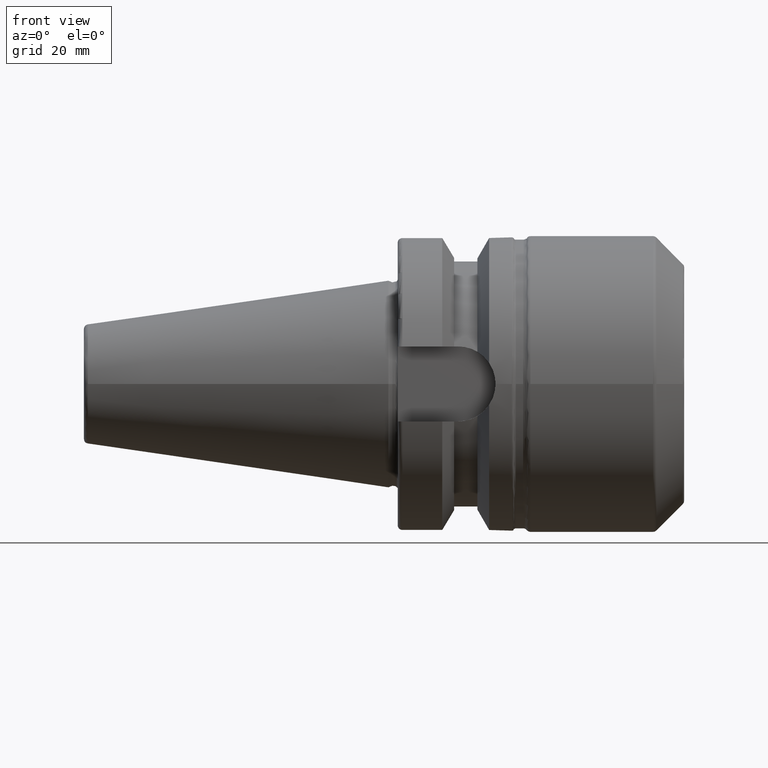
[diagram: clean part render]
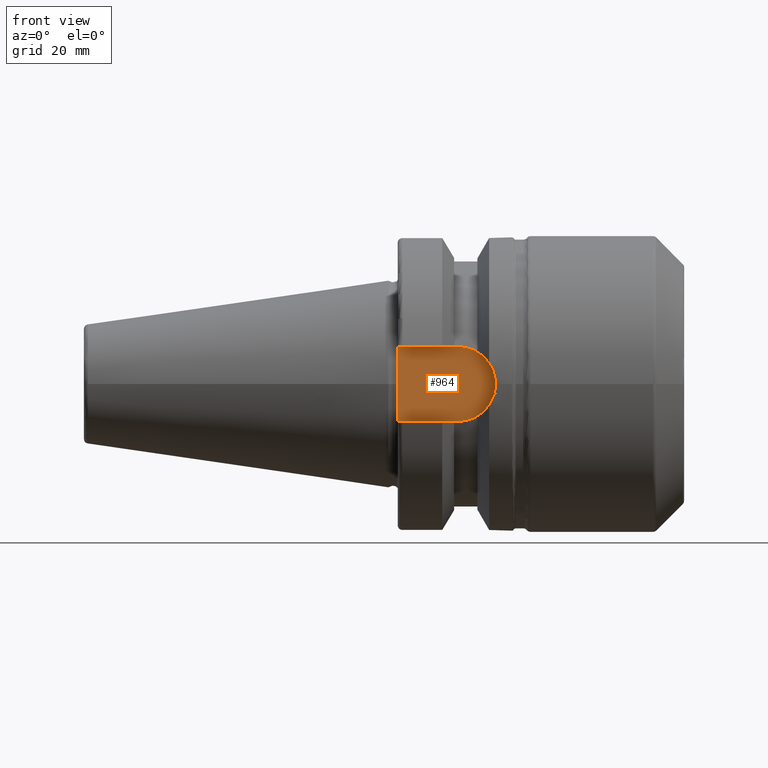
[diagram: same view with one face highlighted and labeled with its STEP entity id]
A machine part, front view. The second image highlights one B-rep face of the part: STEP entity #964.
In plain terms, the highlighted planar face has unit normal (0, 1, 0).
Its self-contained STEP definition (entity closure, byte-faithful):
#45=PLANE('',#1084);
#94=CIRCLE('',#1081,8.05);
#170=FACE_OUTER_BOUND('',#234,.T.);
#234=EDGE_LOOP('',(#759,#760,#761,#762));
#289=LINE('',#1729,#337);
#291=LINE('',#1734,#339);
#295=LINE('',#1756,#343);
#337=VECTOR('',#1301,10.);
#339=VECTOR('',#1305,10.);
#343=VECTOR('',#1311,10.);
#429=VERTEX_POINT('',#1700);
#430=VERTEX_POINT('',#1702);
#436=VERTEX_POINT('',#1727);
#438=VERTEX_POINT('',#1733);
#543=EDGE_CURVE('',#429,#430,#94,.T.);
#551=EDGE_CURVE('',#436,#429,#289,.T.);
#553=EDGE_CURVE('',#430,#438,#291,.T.);
#559=EDGE_CURVE('',#438,#436,#295,.T.);
#759=ORIENTED_EDGE('',*,*,#553,.F.);
#760=ORIENTED_EDGE('',*,*,#543,.F.);
#761=ORIENTED_EDGE('',*,*,#551,.F.);
#762=ORIENTED_EDGE('',*,*,#559,.F.);
#964=ADVANCED_FACE('',(#170),#45,.F.);
#1081=AXIS2_PLACEMENT_3D('',#1703,#1292,#1293);
#1084=AXIS2_PLACEMENT_3D('',#1755,#1309,#1310);
#1292=DIRECTION('center_axis',(0.,1.,0.));
#1293=DIRECTION('ref_axis',(0.,0.,1.));
#1301=DIRECTION('',(1.,0.,8.57315076930623E-17));
#1305=DIRECTION('',(-1.,0.,-8.57315076930623E-17));
#1309=DIRECTION('center_axis',(0.,1.,0.));
#1310=DIRECTION('ref_axis',(0.,0.,1.));
#1311=DIRECTION('',(0.,0.,1.));
#1700=CARTESIAN_POINT('',(14.95,-22.6,8.05));
#1702=CARTESIAN_POINT('',(14.95,-22.6,-8.05));
#1703=CARTESIAN_POINT('Origin',(14.95,-22.6,0.));
#1727=CARTESIAN_POINT('',(1.99999999999999,-22.6,8.05));
#1729=CARTESIAN_POINT('',(1.99999999999999,-22.6,8.05));
#1733=CARTESIAN_POINT('',(1.99999999999999,-22.6,-8.05));
#1734=CARTESIAN_POINT('',(14.95,-22.6,-8.05));
#1755=CARTESIAN_POINT('Origin',(12.5,-22.6,0.));
#1756=CARTESIAN_POINT('',(1.99999999999999,-22.6,0.));